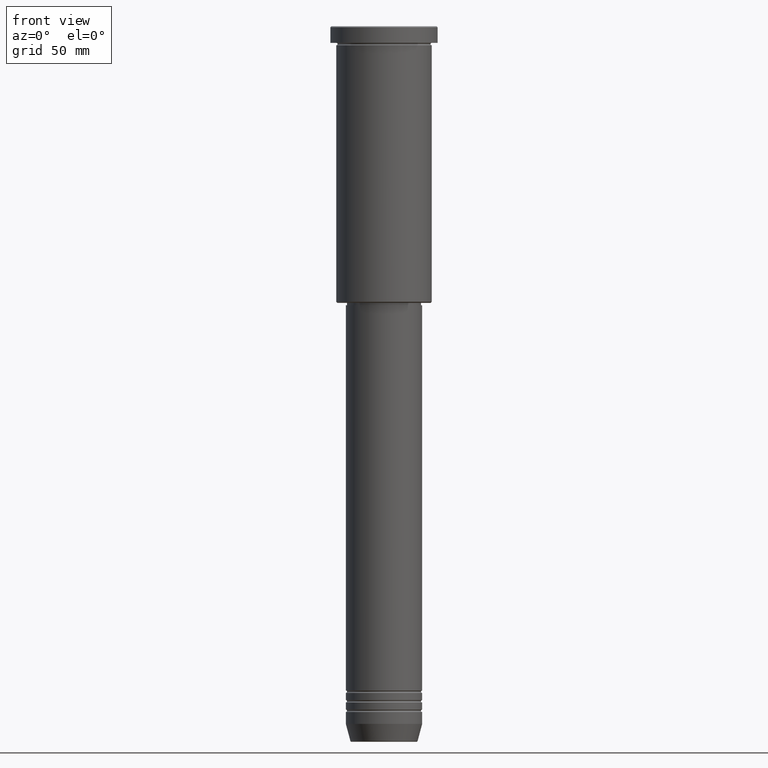
[diagram: clean part render]
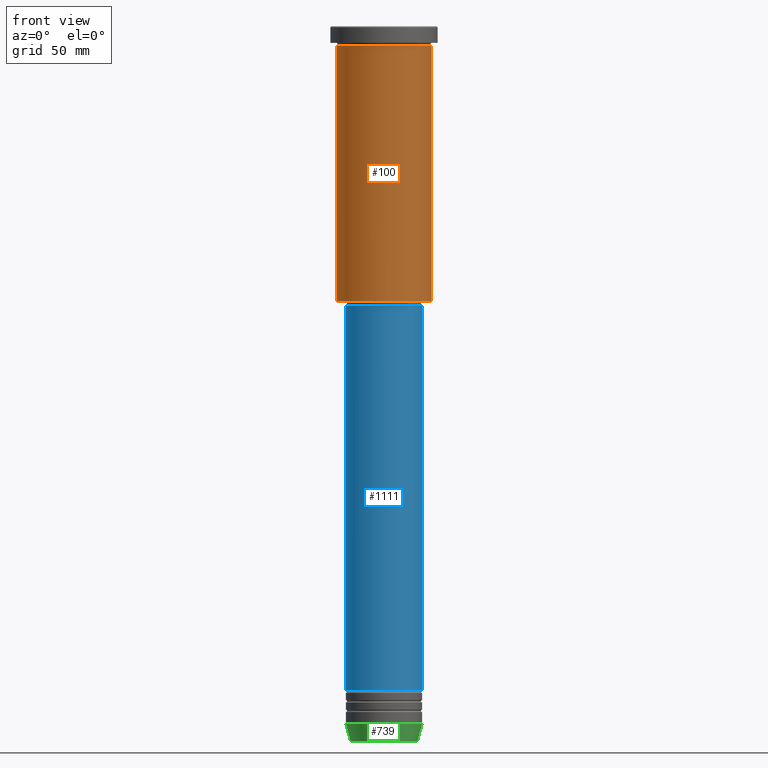
[diagram: same view with three faces highlighted in distinct colors, each labeled with its STEP entity id]
A machine part, front view with three faces highlighted in distinct colors.
Their STEP definitions:

[orange] entity #100 — the highlighted cylindrical surface (partial cylindrical patch) has radius 20 mm, axis along (-0, -0, 1).
#31 = AXIS2_PLACEMENT_3D ( 'NONE', #128, #671, #1128 ) ;
#66 = CIRCLE ( 'NONE', #875, 20.00000000000000000 ) ;
#78 = CYLINDRICAL_SURFACE ( 'NONE', #434, 20.00000000000000355 ) ;
#100 = ADVANCED_FACE ( 'NONE', ( #561 ), #78, .T. ) ;
#101 = DIRECTION ( 'NONE',  ( -0.000000000000000000, -0.000000000000000000, 1.000000000000000000 ) ) ;
#128 = CARTESIAN_POINT ( 'NONE',  ( 0.000000000000000000, 0.000000000000000000, -115.5000000000000142 ) ) ;
#133 = EDGE_CURVE ( 'NONE', #958, #391, #66, .T. ) ;
#176 = DIRECTION ( 'NONE',  ( -0.000000000000000000, -0.000000000000000000, 1.000000000000000000 ) ) ;
#192 = CARTESIAN_POINT ( 'NONE',  ( -20.00000000000000355, 2.449293598294706907E-15, -115.5000000000000142 ) ) ;
#204 = CARTESIAN_POINT ( 'NONE',  ( 20.00000000000000000, 0.000000000000000000, -7.999999999999994671 ) ) ;
#279 = ORIENTED_EDGE ( 'NONE', *, *, #782, .T. ) ;
#384 = CARTESIAN_POINT ( 'NONE',  ( 20.00000000000000355, 0.000000000000000000, -115.5000000000000142 ) ) ;
#385 = EDGE_CURVE ( 'NONE', #720, #391, #931, .T. ) ;
#390 = VECTOR ( 'NONE', #101, 1000.000000000000000 ) ;
#391 = VERTEX_POINT ( 'NONE', #204 ) ;
#434 = AXIS2_PLACEMENT_3D ( 'NONE', #447, #176, #1176 ) ;
#447 = CARTESIAN_POINT ( 'NONE',  ( 0.000000000000000000, 0.000000000000000000, 0.000000000000000000 ) ) ;
#455 = CARTESIAN_POINT ( 'NONE',  ( 20.00000000000000355, 0.000000000000000000, 0.000000000000000000 ) ) ;
#536 = DIRECTION ( 'NONE',  ( -0.000000000000000000, -0.000000000000000000, 1.000000000000000000 ) ) ;
#561 = FACE_OUTER_BOUND ( 'NONE', #1016, .T. ) ;
#573 = ORIENTED_EDGE ( 'NONE', *, *, #133, .F. ) ;
#635 = ORIENTED_EDGE ( 'NONE', *, *, #385, .T. ) ;
#659 = DIRECTION ( 'NONE',  ( -0.000000000000000000, -0.000000000000000000, 1.000000000000000000 ) ) ;
#671 = DIRECTION ( 'NONE',  ( -0.000000000000000000, -0.000000000000000000, 1.000000000000000000 ) ) ;
#713 = LINE ( 'NONE', #1158, #940 ) ;
#720 = VERTEX_POINT ( 'NONE', #384 ) ;
#737 = VERTEX_POINT ( 'NONE', #192 ) ;
#782 = EDGE_CURVE ( 'NONE', #737, #720, #824, .T. ) ;
#824 = CIRCLE ( 'NONE', #31, 20.00000000000000355 ) ;
#858 = DIRECTION ( 'NONE',  ( 1.000000000000000000, 0.000000000000000000, 0.000000000000000000 ) ) ;
#875 = AXIS2_PLACEMENT_3D ( 'NONE', #1039, #659, #858 ) ;
#931 = LINE ( 'NONE', #455, #390 ) ;
#940 = VECTOR ( 'NONE', #536, 1000.000000000000000 ) ;
#958 = VERTEX_POINT ( 'NONE', #1073 ) ;
#966 = ORIENTED_EDGE ( 'NONE', *, *, #1036, .F. ) ;
#1016 = EDGE_LOOP ( 'NONE', ( #966, #279, #635, #573 ) ) ;
#1036 = EDGE_CURVE ( 'NONE', #737, #958, #713, .T. ) ;
#1039 = CARTESIAN_POINT ( 'NONE',  ( 0.000000000000000000, 0.000000000000000000, -7.999999999999994671 ) ) ;
#1073 = CARTESIAN_POINT ( 'NONE',  ( -20.00000000000000000, 2.449293598294706513E-15, -7.999999999999994671 ) ) ;
#1128 = DIRECTION ( 'NONE',  ( -1.000000000000000000, 0.000000000000000000, 0.000000000000000000 ) ) ;
#1158 = CARTESIAN_POINT ( 'NONE',  ( -20.00000000000000355, 2.449293598294706907E-15, 0.000000000000000000 ) ) ;
#1176 = DIRECTION ( 'NONE',  ( 1.000000000000000000, 0.000000000000000000, 0.000000000000000000 ) ) ;

[blue] entity #1111 — the highlighted cylindrical surface (partial cylindrical patch) has radius 16 mm, axis along (-0, -0, 1).
#71 = CIRCLE ( 'NONE', #673, 16.00000000000000000 ) ;
#109 = CARTESIAN_POINT ( 'NONE',  ( 16.00000000000000000, 0.000000000000000000, 0.000000000000000000 ) ) ;
#241 = CARTESIAN_POINT ( 'NONE',  ( -16.00000000000000000, 1.959434878635765131E-15, -278.4999999999999432 ) ) ;
#276 = VERTEX_POINT ( 'NONE', #532 ) ;
#280 = ORIENTED_EDGE ( 'NONE', *, *, #822, .F. ) ;
#305 = DIRECTION ( 'NONE',  ( -0.000000000000000000, -0.000000000000000000, 1.000000000000000000 ) ) ;
#306 = EDGE_CURVE ( 'NONE', #886, #1167, #1171, .T. ) ;
#340 = CARTESIAN_POINT ( 'NONE',  ( 0.000000000000000000, 0.000000000000000000, -278.4999999999999432 ) ) ;
#353 = VECTOR ( 'NONE', #603, 1000.000000000000000 ) ;
#377 = FACE_OUTER_BOUND ( 'NONE', #804, .T. ) ;
#453 = VECTOR ( 'NONE', #305, 1000.000000000000000 ) ;
#500 = DIRECTION ( 'NONE',  ( 1.000000000000000000, 0.000000000000000000, 0.000000000000000000 ) ) ;
#506 = ORIENTED_EDGE ( 'NONE', *, *, #539, .T. ) ;
#532 = CARTESIAN_POINT ( 'NONE',  ( 16.00000000000000000, 0.000000000000000000, -278.4999999999999432 ) ) ;
#539 = EDGE_CURVE ( 'NONE', #276, #980, #752, .T. ) ;
#543 = CARTESIAN_POINT ( 'NONE',  ( -16.00000000000000000, 1.959434878635765131E-15, -117.0000000000000000 ) ) ;
#603 = DIRECTION ( 'NONE',  ( -0.000000000000000000, -0.000000000000000000, 1.000000000000000000 ) ) ;
#608 = DIRECTION ( 'NONE',  ( -0.000000000000000000, -0.000000000000000000, 1.000000000000000000 ) ) ;
#621 = CIRCLE ( 'NONE', #902, 16.00000000000000000 ) ;
#673 = AXIS2_PLACEMENT_3D ( 'NONE', #1114, #608, #500 ) ;
#752 = LINE ( 'NONE', #109, #453 ) ;
#804 = EDGE_LOOP ( 'NONE', ( #1007, #1172, #506, #280 ) ) ;
#812 = CARTESIAN_POINT ( 'NONE',  ( 16.00000000000000000, 0.000000000000000000, -117.0000000000000000 ) ) ;
#822 = EDGE_CURVE ( 'NONE', #1167, #980, #71, .T. ) ;
#838 = DIRECTION ( 'NONE',  ( -0.000000000000000000, -0.000000000000000000, 1.000000000000000000 ) ) ;
#886 = VERTEX_POINT ( 'NONE', #241 ) ;
#902 = AXIS2_PLACEMENT_3D ( 'NONE', #340, #838, #925 ) ;
#910 = DIRECTION ( 'NONE',  ( 1.000000000000000000, 0.000000000000000000, 0.000000000000000000 ) ) ;
#915 = CARTESIAN_POINT ( 'NONE',  ( 0.000000000000000000, 0.000000000000000000, 0.000000000000000000 ) ) ;
#925 = DIRECTION ( 'NONE',  ( 1.000000000000000000, 0.000000000000000000, 0.000000000000000000 ) ) ;
#930 = CYLINDRICAL_SURFACE ( 'NONE', #1122, 16.00000000000000000 ) ;
#980 = VERTEX_POINT ( 'NONE', #812 ) ;
#1007 = ORIENTED_EDGE ( 'NONE', *, *, #306, .F. ) ;
#1094 = EDGE_CURVE ( 'NONE', #886, #276, #621, .T. ) ;
#1108 = DIRECTION ( 'NONE',  ( -0.000000000000000000, -0.000000000000000000, 1.000000000000000000 ) ) ;
#1111 = ADVANCED_FACE ( 'NONE', ( #377 ), #930, .T. ) ;
#1114 = CARTESIAN_POINT ( 'NONE',  ( 0.000000000000000000, 0.000000000000000000, -117.0000000000000000 ) ) ;
#1122 = AXIS2_PLACEMENT_3D ( 'NONE', #915, #1108, #910 ) ;
#1159 = CARTESIAN_POINT ( 'NONE',  ( -16.00000000000000000, 1.959434878635765131E-15, 0.000000000000000000 ) ) ;
#1167 = VERTEX_POINT ( 'NONE', #543 ) ;
#1171 = LINE ( 'NONE', #1159, #353 ) ;
#1172 = ORIENTED_EDGE ( 'NONE', *, *, #1094, .T. ) ;

[green] entity #739 — the highlighted conical surface has half-angle 15 deg.
#11 = DIRECTION ( 'NONE',  ( 1.000000000000000000, 0.000000000000000000, 0.000000000000000000 ) ) ;
#56 = CARTESIAN_POINT ( 'NONE',  ( -14.08968047592161632, 1.842461544110200874E-15, -299.6294095225512137 ) ) ;
#81 = CARTESIAN_POINT ( 'NONE',  ( 0.000000000000000000, 0.000000000000000000, -292.5000000000000000 ) ) ;
#92 = CARTESIAN_POINT ( 'NONE',  ( 16.00000000000000000, 0.000000000000000000, -292.5000000000000000 ) ) ;
#111 = DIRECTION ( 'NONE',  ( 1.000000000000000000, 0.000000000000000000, 0.000000000000000000 ) ) ;
#114 = DIRECTION ( 'NONE',  ( -0.000000000000000000, -0.000000000000000000, 1.000000000000000000 ) ) ;
#151 = VECTOR ( 'NONE', #1019, 1000.000000000000000 ) ;
#161 = EDGE_CURVE ( 'NONE', #345, #1153, #317, .T. ) ;
#186 = VERTEX_POINT ( 'NONE', #229 ) ;
#199 = EDGE_CURVE ( 'NONE', #624, #186, #897, .T. ) ;
#229 = CARTESIAN_POINT ( 'NONE',  ( 16.00000000000000000, 0.000000000000000000, -292.5000000000000000 ) ) ;
#262 = EDGE_LOOP ( 'NONE', ( #1135, #866, #545, #615 ) ) ;
#282 = LINE ( 'NONE', #92, #151 ) ;
#291 = FACE_OUTER_BOUND ( 'NONE', #262, .T. ) ;
#293 = CARTESIAN_POINT ( 'NONE',  ( 0.000000000000000000, 0.000000000000000000, -299.6294095225512137 ) ) ;
#301 = VECTOR ( 'NONE', #678, 1000.000000000000000 ) ;
#307 = CARTESIAN_POINT ( 'NONE',  ( -16.00000000000000000, 1.959434878635765131E-15, -292.5000000000000000 ) ) ;
#317 = CIRCLE ( 'NONE', #418, 14.08968047592161632 ) ;
#345 = VERTEX_POINT ( 'NONE', #56 ) ;
#397 = DIRECTION ( 'NONE',  ( 1.000000000000000000, 0.000000000000000000, 0.000000000000000000 ) ) ;
#402 = DIRECTION ( 'NONE',  ( -0.000000000000000000, -0.000000000000000000, 1.000000000000000000 ) ) ;
#418 = AXIS2_PLACEMENT_3D ( 'NONE', #293, #402, #111 ) ;
#526 = DIRECTION ( 'NONE',  ( -0.000000000000000000, -0.000000000000000000, 1.000000000000000000 ) ) ;
#545 = ORIENTED_EDGE ( 'NONE', *, *, #1107, .T. ) ;
#587 = LINE ( 'NONE', #307, #301 ) ;
#588 = AXIS2_PLACEMENT_3D ( 'NONE', #946, #114, #11 ) ;
#615 = ORIENTED_EDGE ( 'NONE', *, *, #199, .F. ) ;
#624 = VERTEX_POINT ( 'NONE', #981 ) ;
#648 = CARTESIAN_POINT ( 'NONE',  ( 14.08968047592161632, 0.000000000000000000, -299.6294095225512137 ) ) ;
#678 = DIRECTION ( 'NONE',  ( -0.2588190451025213501, 3.169619151431772337E-17, 0.9659258262890680902 ) ) ;
#739 = ADVANCED_FACE ( 'NONE', ( #291 ), #806, .T. ) ;
#806 = CONICAL_SURFACE ( 'NONE', #1121, 16.00000000000000000, 0.2617993877991500740 ) ;
#861 = EDGE_CURVE ( 'NONE', #345, #624, #587, .T. ) ;
#866 = ORIENTED_EDGE ( 'NONE', *, *, #161, .T. ) ;
#897 = CIRCLE ( 'NONE', #588, 16.00000000000000000 ) ;
#946 = CARTESIAN_POINT ( 'NONE',  ( 0.000000000000000000, 0.000000000000000000, -292.5000000000000000 ) ) ;
#981 = CARTESIAN_POINT ( 'NONE',  ( -16.00000000000000000, 1.959434878635765131E-15, -292.5000000000000000 ) ) ;
#1019 = DIRECTION ( 'NONE',  ( 0.2588190451025213501, 0.000000000000000000, 0.9659258262890680902 ) ) ;
#1107 = EDGE_CURVE ( 'NONE', #1153, #186, #282, .T. ) ;
#1121 = AXIS2_PLACEMENT_3D ( 'NONE', #81, #526, #397 ) ;
#1135 = ORIENTED_EDGE ( 'NONE', *, *, #861, .F. ) ;
#1153 = VERTEX_POINT ( 'NONE', #648 ) ;